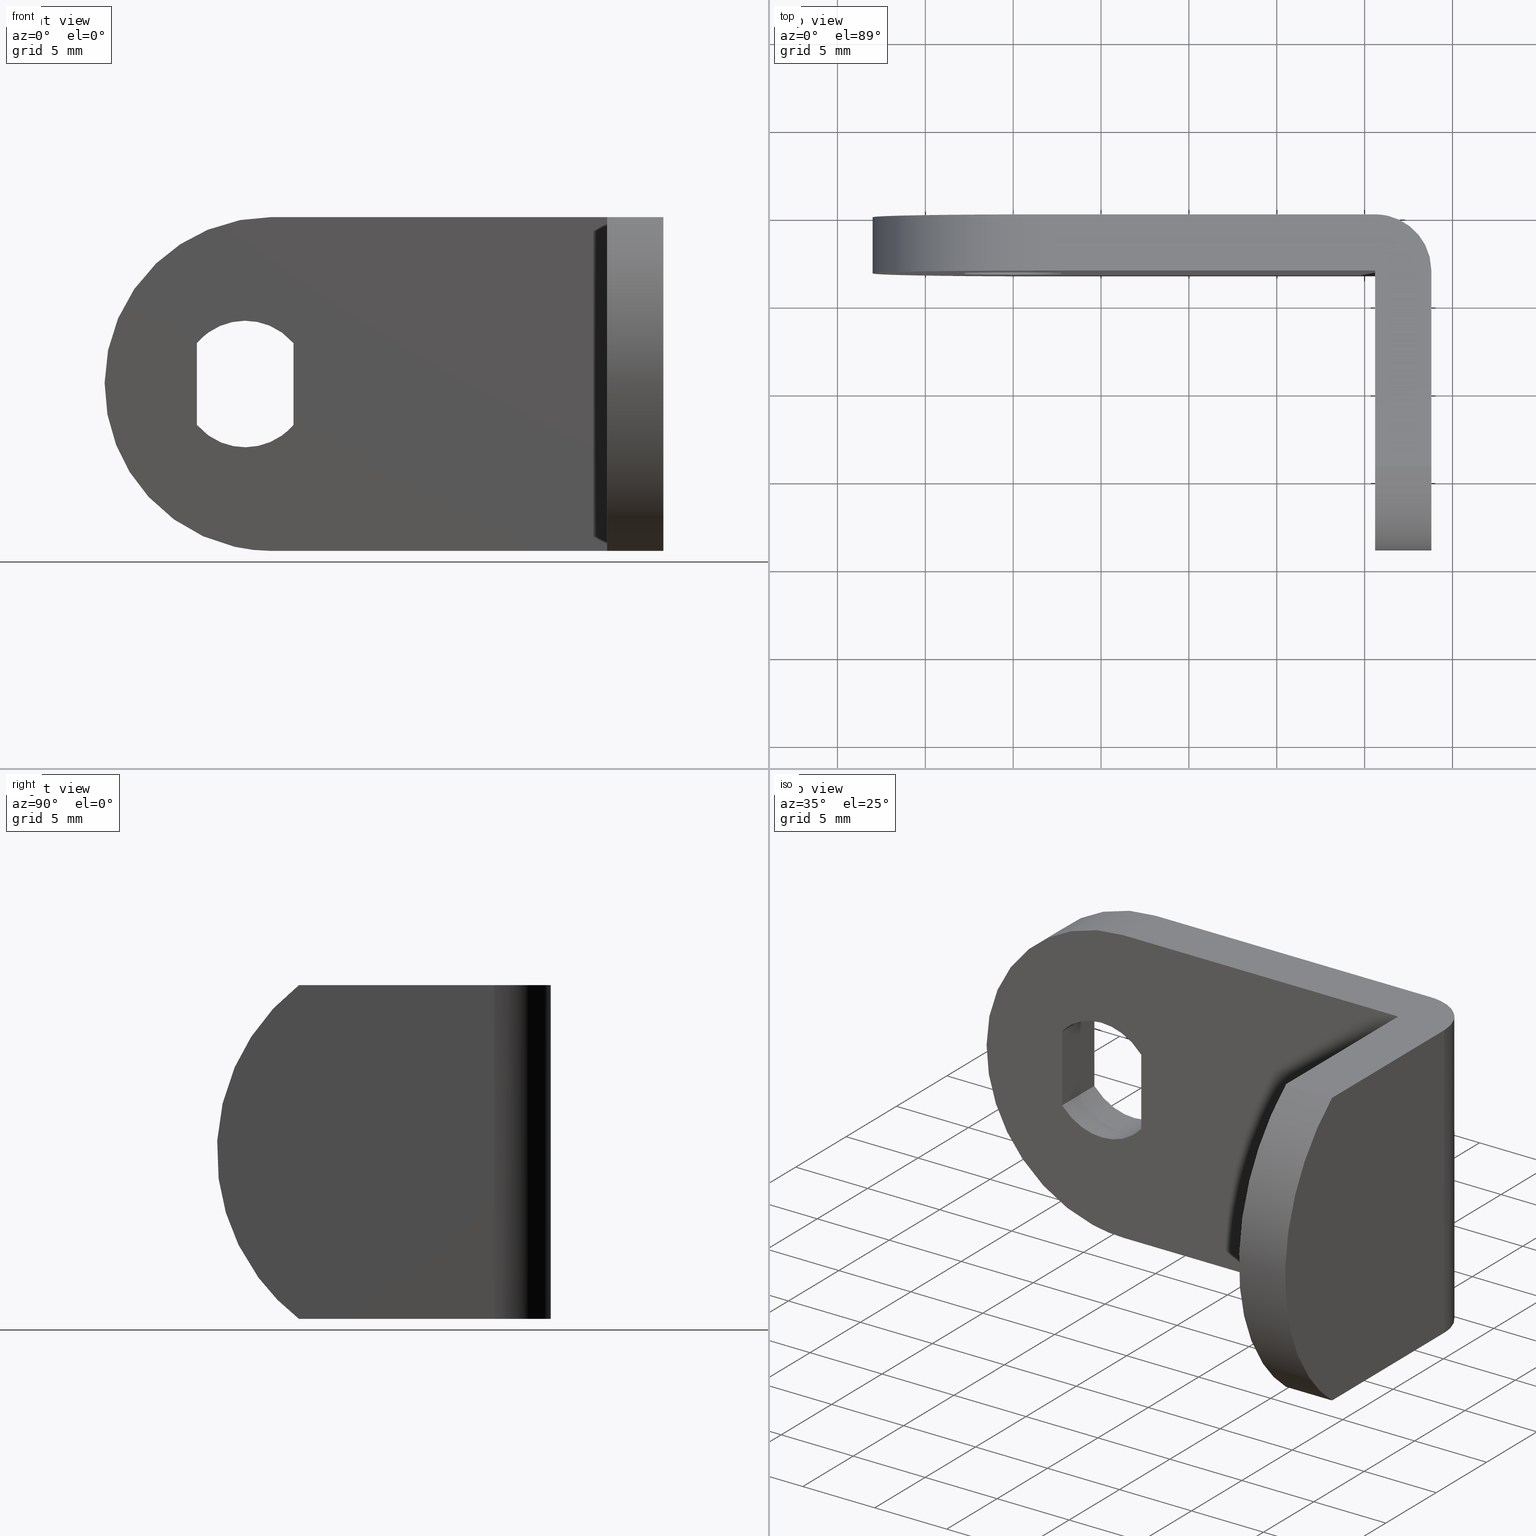
[diagram: canonical four-view strip — front | top / right | iso, engineering-drawing reading convention]
A machine part, canonical four-view strip (front | top / right | iso — engineering-drawing reading convention). The complete STEP part file that produces these views, byte-faithful:
ISO-10303-21;
HEADER;
/****************************************************************
 * Generated by software with PDE/Lib inside                    *
 * PDElib Version 4.4.1-0003, patched  Thursday August 19 11:58 *
 * International Technegroup Inc. (www.iti-oh.com)              *
 ****************************************************************/
FILE_DESCRIPTION((''),'2;1');
FILE_NAME('','2005-07-15T17:37:05',(''),(''),'','CADfix','');
FILE_SCHEMA(('AUTOMOTIVE_DESIGN'));
ENDSEC;
DATA;
#5=APPLICATION_CONTEXT('automotive design');
#6=APPLICATION_PROTOCOL_DEFINITION('Draft International Standard','automotive_design',1998,#5);
#7=PRODUCT_CONTEXT('None',#5,'mechanical');
#8=PRODUCT('cam','','None',(#7));
#9=PRODUCT_RELATED_PRODUCT_CATEGORY('part','description',(#8));
#10=PRODUCT_DEFINITION_FORMATION('None','None',#8);
#11=PRODUCT_DEFINITION_CONTEXT('part definition',#5,'design');
#12=PRODUCT_DEFINITION('None','None',#10,#11);
#18=(NAMED_UNIT(*)PLANE_ANGLE_UNIT()SI_UNIT($,.RADIAN.));
#19=DIMENSIONAL_EXPONENTS(0.0,0.0,0.0,0.0,0.0,0.0,0.0);
#20=PLANE_ANGLE_MEASURE_WITH_UNIT(PLANE_ANGLE_MEASURE(0.017453292500000),#18);
#24=(CONVERSION_BASED_UNIT('DEGREE',#20)NAMED_UNIT(#19)PLANE_ANGLE_UNIT());
#28=(NAMED_UNIT(*)SI_UNIT($,.STERADIAN.)SOLID_ANGLE_UNIT());
#32=(LENGTH_UNIT()NAMED_UNIT(*)SI_UNIT(.MILLI.,.METRE.));
#34=UNCERTAINTY_MEASURE_WITH_UNIT(LENGTH_MEASURE(0.001000000000000),#32,'DISTANCE_ACCURACY_VALUE','');
#36=(GEOMETRIC_REPRESENTATION_CONTEXT(3)GLOBAL_UNCERTAINTY_ASSIGNED_CONTEXT((#34))GLOBAL_UNIT_ASSIGNED_CONTEXT((#24,#28,#32))REPRESENTATION_CONTEXT('None','None'));
#37=AXIS2_PLACEMENT_3D('',#38,#39,#40);
#38=CARTESIAN_POINT('',(0.0,0.0,0.0));
#39=DIRECTION('',(0.0,0.0,1.0));
#40=DIRECTION('',(1.0,0.0,0.0));
#41=ADVANCED_BREP_SHAPE_REPRESENTATION('',(#37,#540),#36);
#42=PRODUCT_DEFINITION_SHAPE('','',#12);
#43=SHAPE_DEFINITION_REPRESENTATION(#42,#41);
#44=CARTESIAN_POINT('',(20.516233765414810,-0.001096560078218,-9.975000000000001));
#45=CARTESIAN_POINT('',(20.516233765414810,-0.001096560078218,9.986874999999996));
#46=CARTESIAN_POINT('',(24.039951671623562,0.091175240645709,-9.975000000000001));
#47=CARTESIAN_POINT('',(24.039951671623562,0.091175240645709,9.986874999999996));
#48=CARTESIAN_POINT('',(23.792078314323856,-3.425024521382329,-9.975000000000003));
#49=CARTESIAN_POINT('',(23.792078314323856,-3.425024521382329,9.986874999999998));
#57=(BOUNDED_SURFACE()B_SPLINE_SURFACE(1,2,((#44,#46,#48),(#45,#47,#49)),.UNSPECIFIED.,.F.,.F.,.U.)B_SPLINE_SURFACE_WITH_KNOTS((2,2),(3,3),(0.0,19.961874999999999),(0.0,5.667655836183720),.UNSPECIFIED.)GEOMETRIC_REPRESENTATION_ITEM()RATIONAL_B_SPLINE_SURFACE(((1.0,0.670944203741254,0.996392687010487),(1.0,0.670944203741254,0.996392687010487)))REPRESENTATION_ITEM('')SURFACE());
#58=CARTESIAN_POINT('',(20.600000000000001,0.0,-9.500000000000000));
#59=VERTEX_POINT('',#58);
#60=CARTESIAN_POINT('',(23.800000000000001,-3.200000000000000,-9.500000000000000));
#61=VERTEX_POINT('',#60);
#62=CARTESIAN_POINT('',(20.600000000000001,0.0,-9.500000000000000));
#63=CARTESIAN_POINT('',(23.799999999999997,-4.336809E-016,-9.500000000000000));
#64=CARTESIAN_POINT('',(23.800000000000001,-3.200000000000000,-9.500000000000000));
#72=(BOUNDED_CURVE()B_SPLINE_CURVE(2,(#62,#63,#64),.UNSPECIFIED.,.F.,.U.)CURVE()GEOMETRIC_REPRESENTATION_ITEM()QUASI_UNIFORM_CURVE()RATIONAL_B_SPLINE_CURVE((1.0,0.707106781186548,1.0))REPRESENTATION_ITEM(''));
#73=EDGE_CURVE('',#59,#61,#72,.T.);
#74=ORIENTED_EDGE('',*,*,#73,.F.);
#75=CARTESIAN_POINT('',(20.600000000000001,0.0,9.500000000000000));
#76=VERTEX_POINT('',#75);
#77=CARTESIAN_POINT('',(20.600000000000001,0.0,9.500000000000000));
#78=CARTESIAN_POINT('',(20.600000000000001,0.0,-9.500000000000000));
#79=QUASI_UNIFORM_CURVE('',1,(#77,#78),.UNSPECIFIED.,.F.,.U.);
#80=EDGE_CURVE('',#76,#59,#79,.T.);
#81=ORIENTED_EDGE('',*,*,#80,.F.);
#82=CARTESIAN_POINT('',(23.800000000000001,-3.200000000000000,9.500000000000000));
#83=VERTEX_POINT('',#82);
#84=CARTESIAN_POINT('',(23.800000000000001,-3.200000000000000,9.500000000000000));
#85=CARTESIAN_POINT('',(23.799999999999997,-4.336809E-016,9.500000000000000));
#86=CARTESIAN_POINT('',(20.600000000000001,0.0,9.500000000000000));
#94=(BOUNDED_CURVE()B_SPLINE_CURVE(2,(#84,#85,#86),.UNSPECIFIED.,.F.,.U.)CURVE()GEOMETRIC_REPRESENTATION_ITEM()QUASI_UNIFORM_CURVE()RATIONAL_B_SPLINE_CURVE((1.0,0.707106781186548,1.0))REPRESENTATION_ITEM(''));
#95=EDGE_CURVE('',#83,#76,#94,.T.);
#96=ORIENTED_EDGE('',*,*,#95,.F.);
#97=CARTESIAN_POINT('',(23.800000000000001,-3.200000000000000,-9.500000000000000));
#98=CARTESIAN_POINT('',(23.800000000000001,-3.200000000000000,9.500000000000000));
#99=QUASI_UNIFORM_CURVE('',1,(#97,#98),.UNSPECIFIED.,.F.,.U.);
#100=EDGE_CURVE('',#61,#83,#99,.T.);
#101=ORIENTED_EDGE('',*,*,#100,.F.);
#102=EDGE_LOOP('',(#74,#81,#96,#101));
#103=FACE_OUTER_BOUND('',#102,.T.);
#104=ADVANCED_FACE('',(#103),#57,.T.);
#105=CARTESIAN_POINT('',(20.600000000000001,-19.789209969376550,-10.449049963174311));
#106=CARTESIAN_POINT('',(20.600000000000001,-2.410789606834190,-10.449049963174311));
#107=CARTESIAN_POINT('',(20.600000000000001,-19.789209969376550,10.449050472794021));
#108=CARTESIAN_POINT('',(20.600000000000001,-2.410789606834190,10.449050472794021));
#109=B_SPLINE_SURFACE_WITH_KNOTS('',1,1,((#105,#107),(#106,#108)),.UNSPECIFIED.,.F.,.F.,.U.,(2,2),(2,2),(0.0,17.378420362542361),(0.0,20.898100435968342),.UNSPECIFIED.);
#110=CARTESIAN_POINT('',(20.600000000000001,-3.199999999999760,-9.500000000000000));
#111=VERTEX_POINT('',#110);
#112=CARTESIAN_POINT('',(20.600000000000001,-3.199999999999760,9.500000000000000));
#113=VERTEX_POINT('',#112);
#114=CARTESIAN_POINT('',(20.600000000000001,-3.199999999999760,-9.500000000000000));
#115=CARTESIAN_POINT('',(20.600000000000001,-3.199999999999760,9.500000000000000));
#116=QUASI_UNIFORM_CURVE('',1,(#114,#115),.UNSPECIFIED.,.F.,.U.);
#117=EDGE_CURVE('',#111,#113,#116,.T.);
#118=ORIENTED_EDGE('',*,*,#117,.F.);
#119=CARTESIAN_POINT('',(20.600000000000001,-14.331439149307560,-9.500000000000000));
#120=VERTEX_POINT('',#119);
#121=CARTESIAN_POINT('',(20.600000000000001,-14.331439149307560,-9.500000000000000));
#122=CARTESIAN_POINT('',(20.600000000000001,-3.199999999999760,-9.500000000000000));
#123=QUASI_UNIFORM_CURVE('',1,(#121,#122),.UNSPECIFIED.,.F.,.U.);
#124=EDGE_CURVE('',#120,#111,#123,.T.);
#125=ORIENTED_EDGE('',*,*,#124,.F.);
#126=CARTESIAN_POINT('',(20.600000000000001,-14.331439149307601,9.500000000000000));
#127=VERTEX_POINT('',#126);
#128=CARTESIAN_POINT('',(20.600000000000001,-14.331439149307601,9.499999999999996));
#129=CARTESIAN_POINT('',(20.600000000000001,-19.0,5.897129495611462));
#130=CARTESIAN_POINT('',(20.600000000000001,-19.0,-4.286122E-016));
#131=CARTESIAN_POINT('',(20.600000000000001,-19.0,-5.897129495611475));
#132=CARTESIAN_POINT('',(20.600000000000001,-14.331439149307579,-9.500000000000011));
#140=(BOUNDED_CURVE()B_SPLINE_CURVE(2,(#128,#129,#130,#131,#132),.UNSPECIFIED.,.F.,.U.)B_SPLINE_CURVE_WITH_KNOTS((3,2,3),(0.0,0.500000000000000,1.0),.UNSPECIFIED.)CURVE()GEOMETRIC_REPRESENTATION_ITEM()RATIONAL_B_SPLINE_CURVE((1.0,0.897483499135862,1.0,0.897483499135862,1.0))REPRESENTATION_ITEM(''));
#141=EDGE_CURVE('',#127,#120,#140,.T.);
#142=ORIENTED_EDGE('',*,*,#141,.F.);
#143=CARTESIAN_POINT('',(20.600000000000001,-3.199999999999760,9.500000000000000));
#144=CARTESIAN_POINT('',(20.600000000000001,-14.331439149307601,9.500000000000000));
#145=QUASI_UNIFORM_CURVE('',1,(#143,#144),.UNSPECIFIED.,.F.,.U.);
#146=EDGE_CURVE('',#113,#127,#145,.T.);
#147=ORIENTED_EDGE('',*,*,#146,.F.);
#148=EDGE_LOOP('',(#118,#125,#142,#147));
#149=FACE_OUTER_BOUND('',#148,.T.);
#150=ADVANCED_FACE('',(#149),#109,.F.);
#151=CARTESIAN_POINT('',(23.800000000000001,-19.789209969376540,-10.449049963174311));
#152=CARTESIAN_POINT('',(23.800000000000001,-2.410789606834443,-10.449049963174311));
#153=CARTESIAN_POINT('',(23.800000000000001,-19.789209969376540,10.449050472794021));
#154=CARTESIAN_POINT('',(23.800000000000001,-2.410789606834443,10.449050472794021));
#155=B_SPLINE_SURFACE_WITH_KNOTS('',1,1,((#151,#153),(#152,#154)),.UNSPECIFIED.,.F.,.F.,.U.,(2,2),(2,2),(0.0,17.378420362542101),(0.0,20.898100435968342),.UNSPECIFIED.);
#156=CARTESIAN_POINT('',(23.800000000000001,-14.331439149307560,-9.500000000000000));
#157=VERTEX_POINT('',#156);
#158=CARTESIAN_POINT('',(23.800000000000001,-14.331439149307560,-9.500000000000000));
#159=CARTESIAN_POINT('',(23.800000000000001,-3.200000000000000,-9.500000000000000));
#160=QUASI_UNIFORM_CURVE('',1,(#158,#159),.UNSPECIFIED.,.F.,.U.);
#161=EDGE_CURVE('',#157,#61,#160,.T.);
#162=ORIENTED_EDGE('',*,*,#161,.T.);
#163=ORIENTED_EDGE('',*,*,#100,.T.);
#164=CARTESIAN_POINT('',(23.800000000000001,-14.331439149307601,9.500000000000000));
#165=VERTEX_POINT('',#164);
#166=CARTESIAN_POINT('',(23.800000000000001,-3.200000000000000,9.500000000000000));
#167=CARTESIAN_POINT('',(23.800000000000001,-14.331439149307601,9.500000000000000));
#168=QUASI_UNIFORM_CURVE('',1,(#166,#167),.UNSPECIFIED.,.F.,.U.);
#169=EDGE_CURVE('',#83,#165,#168,.T.);
#170=ORIENTED_EDGE('',*,*,#169,.T.);
#171=CARTESIAN_POINT('',(23.800000000000001,-14.331439149307601,9.499999999999996));
#172=CARTESIAN_POINT('',(23.800000000000004,-19.0,5.897129495611462));
#173=CARTESIAN_POINT('',(23.800000000000001,-19.0,-4.286122E-016));
#174=CARTESIAN_POINT('',(23.800000000000004,-19.0,-5.897129495611475));
#175=CARTESIAN_POINT('',(23.800000000000001,-14.331439149307579,-9.500000000000011));
#183=(BOUNDED_CURVE()B_SPLINE_CURVE(2,(#171,#172,#173,#174,#175),.UNSPECIFIED.,.F.,.U.)B_SPLINE_CURVE_WITH_KNOTS((3,2,3),(0.0,0.500000000000000,1.0),.UNSPECIFIED.)CURVE()GEOMETRIC_REPRESENTATION_ITEM()RATIONAL_B_SPLINE_CURVE((1.0,0.897483499135862,1.0,0.897483499135862,1.0))REPRESENTATION_ITEM(''));
#184=EDGE_CURVE('',#165,#157,#183,.T.);
#185=ORIENTED_EDGE('',*,*,#184,.T.);
#186=EDGE_LOOP('',(#162,#163,#170,#185));
#187=FACE_OUTER_BOUND('',#186,.T.);
#188=ADVANCED_FACE('',(#187),#155,.T.);
#189=CARTESIAN_POINT('',(23.880000000000010,-13.910077063780680,9.810750989226667));
#190=CARTESIAN_POINT('',(20.518000000000001,-13.910077063780680,9.810750989226667));
#191=CARTESIAN_POINT('',(23.880000000000010,-27.921281533687949,-0.057861795846104));
#192=CARTESIAN_POINT('',(20.517999999999994,-27.921281533687949,-0.057861795846104));
#193=CARTESIAN_POINT('',(23.880000000000010,-13.855704761198680,-9.848822885364408));
#194=CARTESIAN_POINT('',(20.518000000000001,-13.855704761198680,-9.848822885364408));
#202=(BOUNDED_SURFACE()B_SPLINE_SURFACE(1,2,((#189,#191,#193),(#190,#192,#194)),.UNSPECIFIED.,.F.,.F.,.U.)B_SPLINE_SURFACE_WITH_KNOTS((2,2),(3,3),(0.0,3.362000000000010),(0.0,24.987218426483800),.UNSPECIFIED.)GEOMETRIC_REPRESENTATION_ITEM()RATIONAL_B_SPLINE_SURFACE(((1.0,0.573576436351047,1.0),(1.0,0.573576436351047,1.0)))REPRESENTATION_ITEM('')SURFACE());
#203=ORIENTED_EDGE('',*,*,#141,.T.);
#204=CARTESIAN_POINT('',(23.800000000000001,-14.331439149307560,-9.500000000000000));
#205=CARTESIAN_POINT('',(20.600000000000001,-14.331439149307560,-9.500000000000000));
#206=QUASI_UNIFORM_CURVE('',1,(#204,#205),.UNSPECIFIED.,.F.,.U.);
#207=EDGE_CURVE('',#157,#120,#206,.T.);
#208=ORIENTED_EDGE('',*,*,#207,.F.);
#209=ORIENTED_EDGE('',*,*,#184,.F.);
#210=CARTESIAN_POINT('',(23.800000000000001,-14.331439149307601,9.500000000000000));
#211=CARTESIAN_POINT('',(20.600000000000001,-14.331439149307601,9.500000000000000));
#212=QUASI_UNIFORM_CURVE('',1,(#210,#211),.UNSPECIFIED.,.F.,.U.);
#213=EDGE_CURVE('',#165,#127,#212,.T.);
#214=ORIENTED_EDGE('',*,*,#213,.T.);
#215=EDGE_LOOP('',(#203,#208,#209,#214));
#216=FACE_OUTER_BOUND('',#215,.T.);
#217=ADVANCED_FACE('',(#216),#202,.T.);
#218=CARTESIAN_POINT('',(-9.428569944567636,0.0,10.449049963174311));
#219=CARTESIAN_POINT('',(22.028570711679428,0.0,10.449049963174311));
#220=CARTESIAN_POINT('',(-9.428569944567636,0.0,-10.449050472794021));
#221=CARTESIAN_POINT('',(22.028570711679428,0.0,-10.449050472794021));
#222=B_SPLINE_SURFACE_WITH_KNOTS('',1,1,((#218,#220),(#219,#221)),.UNSPECIFIED.,.F.,.F.,.U.,(2,2),(2,2),(0.0,31.457140656247059),(0.0,20.898100435968342),.UNSPECIFIED.);
#223=CARTESIAN_POINT('',(1.500000000000000,0.0,9.500000000000000));
#224=VERTEX_POINT('',#223);
#225=CARTESIAN_POINT('',(20.600000000000001,0.0,9.500000000000000));
#226=CARTESIAN_POINT('',(1.500000000000000,0.0,9.500000000000000));
#227=QUASI_UNIFORM_CURVE('',1,(#225,#226),.UNSPECIFIED.,.F.,.U.);
#228=EDGE_CURVE('',#76,#224,#227,.T.);
#229=ORIENTED_EDGE('',*,*,#228,.F.);
#230=ORIENTED_EDGE('',*,*,#80,.T.);
#231=CARTESIAN_POINT('',(1.500000000000000,0.0,-9.500000000000000));
#232=VERTEX_POINT('',#231);
#233=CARTESIAN_POINT('',(1.500000000000000,0.0,-9.500000000000000));
#234=CARTESIAN_POINT('',(20.600000000000001,0.0,-9.500000000000000));
#235=QUASI_UNIFORM_CURVE('',1,(#233,#234),.UNSPECIFIED.,.F.,.U.);
#236=EDGE_CURVE('',#232,#59,#235,.T.);
#237=ORIENTED_EDGE('',*,*,#236,.F.);
#238=CARTESIAN_POINT('',(1.500000000000000,0.0,9.500000000000000));
#239=CARTESIAN_POINT('',(-8.0,0.0,9.500000000000000));
#240=CARTESIAN_POINT('',(-8.0,0.0,0.0));
#241=CARTESIAN_POINT('',(-8.0,0.0,-9.500000000000000));
#242=CARTESIAN_POINT('',(1.500000000000000,0.0,-9.500000000000000));
#250=(BOUNDED_CURVE()B_SPLINE_CURVE(2,(#238,#239,#240,#241,#242),.UNSPECIFIED.,.F.,.U.)B_SPLINE_CURVE_WITH_KNOTS((3,2,3),(0.0,0.500000000000000,1.0),.UNSPECIFIED.)CURVE()GEOMETRIC_REPRESENTATION_ITEM()RATIONAL_B_SPLINE_CURVE((1.0,0.707106781186548,1.0,0.707106781186548,1.0))REPRESENTATION_ITEM(''));
#251=EDGE_CURVE('',#224,#232,#250,.T.);
#252=ORIENTED_EDGE('',*,*,#251,.F.);
#253=EDGE_LOOP('',(#229,#230,#237,#252));
#254=FACE_OUTER_BOUND('',#253,.T.);
#255=CARTESIAN_POINT('',(-2.750000000000000,0.0,-2.323252031097790));
#256=VERTEX_POINT('',#255);
#257=CARTESIAN_POINT('',(2.750000000000000,0.0,-2.323252031097790));
#258=VERTEX_POINT('',#257);
#259=CARTESIAN_POINT('',(-2.749999999999999,0.0,-2.323252031097790));
#260=CARTESIAN_POINT('',(-1.671379159290166,0.0,-3.600000000000001));
#261=CARTESIAN_POINT('',(0.0,0.0,-3.600000000000000));
#262=CARTESIAN_POINT('',(1.671379159290166,0.0,-3.600000000000001));
#263=CARTESIAN_POINT('',(2.749999999999998,0.0,-2.323252031097791));
#271=(BOUNDED_CURVE()B_SPLINE_CURVE(2,(#259,#260,#261,#262,#263),.UNSPECIFIED.,.F.,.U.)B_SPLINE_CURVE_WITH_KNOTS((3,2,3),(0.0,0.500000000000000,1.0),.UNSPECIFIED.)CURVE()GEOMETRIC_REPRESENTATION_ITEM()RATIONAL_B_SPLINE_CURVE((1.0,0.907013722723105,1.0,0.907013722723105,1.0))REPRESENTATION_ITEM(''));
#272=EDGE_CURVE('',#256,#258,#271,.T.);
#273=ORIENTED_EDGE('',*,*,#272,.T.);
#274=CARTESIAN_POINT('',(2.750000000000000,0.0,2.323252031097790));
#275=VERTEX_POINT('',#274);
#276=CARTESIAN_POINT('',(2.750000000000000,0.0,2.323252031097790));
#277=CARTESIAN_POINT('',(2.750000000000000,0.0,-2.323252031097790));
#278=QUASI_UNIFORM_CURVE('',1,(#276,#277),.UNSPECIFIED.,.F.,.U.);
#279=EDGE_CURVE('',#275,#258,#278,.T.);
#280=ORIENTED_EDGE('',*,*,#279,.F.);
#281=CARTESIAN_POINT('',(-2.750000000000000,0.0,2.323252031097790));
#282=VERTEX_POINT('',#281);
#283=CARTESIAN_POINT('',(2.749999999999999,0.0,2.323252031097790));
#284=CARTESIAN_POINT('',(1.671379159290166,0.0,3.600000000000001));
#285=CARTESIAN_POINT('',(0.0,0.0,3.600000000000000));
#286=CARTESIAN_POINT('',(-1.671379159290165,0.0,3.600000000000001));
#287=CARTESIAN_POINT('',(-2.749999999999998,0.0,2.323252031097791));
#295=(BOUNDED_CURVE()B_SPLINE_CURVE(2,(#283,#284,#285,#286,#287),.UNSPECIFIED.,.F.,.U.)B_SPLINE_CURVE_WITH_KNOTS((3,2,3),(0.0,0.500000000000000,1.0),.UNSPECIFIED.)CURVE()GEOMETRIC_REPRESENTATION_ITEM()RATIONAL_B_SPLINE_CURVE((1.0,0.907013722723105,1.0,0.907013722723105,1.0))REPRESENTATION_ITEM(''));
#296=EDGE_CURVE('',#275,#282,#295,.T.);
#297=ORIENTED_EDGE('',*,*,#296,.T.);
#298=CARTESIAN_POINT('',(-2.750000000000000,0.0,-2.323252031097790));
#299=CARTESIAN_POINT('',(-2.750000000000000,0.0,2.323252031097790));
#300=QUASI_UNIFORM_CURVE('',1,(#298,#299),.UNSPECIFIED.,.F.,.U.);
#301=EDGE_CURVE('',#256,#282,#300,.T.);
#302=ORIENTED_EDGE('',*,*,#301,.F.);
#303=EDGE_LOOP('',(#273,#280,#297,#302));
#304=FACE_BOUND('',#303,.T.);
#305=ADVANCED_FACE('',(#254,#304),#222,.T.);
#306=CARTESIAN_POINT('',(-9.428569944567636,-3.199999999999800,10.449049963174311));
#307=CARTESIAN_POINT('',(22.028570711679428,-3.199999999999800,10.449049963174311));
#308=CARTESIAN_POINT('',(-9.428569944567636,-3.199999999999800,-10.449050472794021));
#309=CARTESIAN_POINT('',(22.028570711679428,-3.199999999999800,-10.449050472794021));
#310=B_SPLINE_SURFACE_WITH_KNOTS('',1,1,((#306,#308),(#307,#309)),.UNSPECIFIED.,.F.,.F.,.U.,(2,2),(2,2),(0.0,31.457140656247059),(0.0,20.898100435968342),.UNSPECIFIED.);
#311=CARTESIAN_POINT('',(1.500000000000000,-3.199999999999760,9.500000000000000));
#312=VERTEX_POINT('',#311);
#313=CARTESIAN_POINT('',(20.600000000000001,-3.199999999999760,9.500000000000000));
#314=CARTESIAN_POINT('',(1.500000000000000,-3.199999999999760,9.500000000000000));
#315=QUASI_UNIFORM_CURVE('',1,(#313,#314),.UNSPECIFIED.,.F.,.U.);
#316=EDGE_CURVE('',#113,#312,#315,.T.);
#317=ORIENTED_EDGE('',*,*,#316,.T.);
#318=CARTESIAN_POINT('',(1.500000000000000,-3.199999999999760,-9.500000000000000));
#319=VERTEX_POINT('',#318);
#320=CARTESIAN_POINT('',(1.500000000000000,-3.199999999999760,9.500000000000000));
#321=CARTESIAN_POINT('',(-8.0,-3.199999999999759,9.500000000000000));
#322=CARTESIAN_POINT('',(-8.0,-3.199999999999760,0.0));
#323=CARTESIAN_POINT('',(-8.0,-3.199999999999759,-9.500000000000000));
#324=CARTESIAN_POINT('',(1.500000000000000,-3.199999999999760,-9.500000000000000));
#332=(BOUNDED_CURVE()B_SPLINE_CURVE(2,(#320,#321,#322,#323,#324),.UNSPECIFIED.,.F.,.U.)B_SPLINE_CURVE_WITH_KNOTS((3,2,3),(0.0,0.500000000000000,1.0),.UNSPECIFIED.)CURVE()GEOMETRIC_REPRESENTATION_ITEM()RATIONAL_B_SPLINE_CURVE((1.0,0.707106781186548,1.0,0.707106781186548,1.0))REPRESENTATION_ITEM(''));
#333=EDGE_CURVE('',#312,#319,#332,.T.);
#334=ORIENTED_EDGE('',*,*,#333,.T.);
#335=CARTESIAN_POINT('',(1.500000000000000,-3.199999999999760,-9.500000000000000));
#336=CARTESIAN_POINT('',(20.600000000000001,-3.199999999999760,-9.500000000000000));
#337=QUASI_UNIFORM_CURVE('',1,(#335,#336),.UNSPECIFIED.,.F.,.U.);
#338=EDGE_CURVE('',#319,#111,#337,.T.);
#339=ORIENTED_EDGE('',*,*,#338,.T.);
#340=ORIENTED_EDGE('',*,*,#117,.T.);
#341=EDGE_LOOP('',(#317,#334,#339,#340));
#342=FACE_OUTER_BOUND('',#341,.T.);
#343=CARTESIAN_POINT('',(-2.750000000000000,-3.199999999999760,-2.323252031097790));
#344=VERTEX_POINT('',#343);
#345=CARTESIAN_POINT('',(2.750000000000000,-3.199999999999760,-2.323252031097790));
#346=VERTEX_POINT('',#345);
#347=CARTESIAN_POINT('',(-2.749999999999999,-3.199999999999760,-2.323252031097790));
#348=CARTESIAN_POINT('',(-1.671379159290166,-3.199999999999760,-3.600000000000001));
#349=CARTESIAN_POINT('',(0.0,-3.199999999999760,-3.600000000000000));
#350=CARTESIAN_POINT('',(1.671379159290166,-3.199999999999760,-3.600000000000001));
#351=CARTESIAN_POINT('',(2.749999999999998,-3.199999999999760,-2.323252031097791));
#359=(BOUNDED_CURVE()B_SPLINE_CURVE(2,(#347,#348,#349,#350,#351),.UNSPECIFIED.,.F.,.U.)B_SPLINE_CURVE_WITH_KNOTS((3,2,3),(0.0,0.500000000000000,1.0),.UNSPECIFIED.)CURVE()GEOMETRIC_REPRESENTATION_ITEM()RATIONAL_B_SPLINE_CURVE((1.0,0.907013722723105,1.0,0.907013722723105,1.0))REPRESENTATION_ITEM(''));
#360=EDGE_CURVE('',#344,#346,#359,.T.);
#361=ORIENTED_EDGE('',*,*,#360,.F.);
#362=CARTESIAN_POINT('',(-2.750000000000000,-3.199999999999760,2.323252031097790));
#363=VERTEX_POINT('',#362);
#364=CARTESIAN_POINT('',(-2.750000000000000,-3.199999999999760,-2.323252031097790));
#365=CARTESIAN_POINT('',(-2.750000000000000,-3.199999999999760,2.323252031097790));
#366=QUASI_UNIFORM_CURVE('',1,(#364,#365),.UNSPECIFIED.,.F.,.U.);
#367=EDGE_CURVE('',#344,#363,#366,.T.);
#368=ORIENTED_EDGE('',*,*,#367,.T.);
#369=CARTESIAN_POINT('',(2.750000000000000,-3.199999999999760,2.323252031097790));
#370=VERTEX_POINT('',#369);
#371=CARTESIAN_POINT('',(2.749999999999999,-3.199999999999760,2.323252031097790));
#372=CARTESIAN_POINT('',(1.671379159290166,-3.199999999999760,3.600000000000001));
#373=CARTESIAN_POINT('',(0.0,-3.199999999999760,3.600000000000000));
#374=CARTESIAN_POINT('',(-1.671379159290165,-3.199999999999760,3.600000000000001));
#375=CARTESIAN_POINT('',(-2.749999999999998,-3.199999999999760,2.323252031097791));
#383=(BOUNDED_CURVE()B_SPLINE_CURVE(2,(#371,#372,#373,#374,#375),.UNSPECIFIED.,.F.,.U.)B_SPLINE_CURVE_WITH_KNOTS((3,2,3),(0.0,0.500000000000000,1.0),.UNSPECIFIED.)CURVE()GEOMETRIC_REPRESENTATION_ITEM()RATIONAL_B_SPLINE_CURVE((1.0,0.907013722723105,1.0,0.907013722723105,1.0))REPRESENTATION_ITEM(''));
#384=EDGE_CURVE('',#370,#363,#383,.T.);
#385=ORIENTED_EDGE('',*,*,#384,.F.);
#386=CARTESIAN_POINT('',(2.750000000000000,-3.199999999999760,2.323252031097790));
#387=CARTESIAN_POINT('',(2.750000000000000,-3.199999999999760,-2.323252031097790));
#388=QUASI_UNIFORM_CURVE('',1,(#386,#387),.UNSPECIFIED.,.F.,.U.);
#389=EDGE_CURVE('',#370,#346,#388,.T.);
#390=ORIENTED_EDGE('',*,*,#389,.T.);
#391=EDGE_LOOP('',(#361,#368,#385,#390));
#392=FACE_BOUND('',#391,.T.);
#393=ADVANCED_FACE('',(#342,#392),#310,.F.);
#394=CARTESIAN_POINT('',(2.750000000000000,-3.359840053876149,2.555344839780001));
#395=CARTESIAN_POINT('',(2.750000000000000,-3.359840053876149,-2.555344673608066));
#396=CARTESIAN_POINT('',(2.750000000000000,0.159840082486617,2.555344839780001));
#397=CARTESIAN_POINT('',(2.750000000000000,0.159840082486617,-2.555344673608066));
#398=B_SPLINE_SURFACE_WITH_KNOTS('',1,1,((#394,#396),(#395,#397)),.UNSPECIFIED.,.F.,.F.,.U.,(2,2),(2,2),(0.0,5.110689513388067),(0.0,3.519680136362766),.UNSPECIFIED.);
#399=ORIENTED_EDGE('',*,*,#279,.T.);
#400=CARTESIAN_POINT('',(2.750000000000000,-3.199999999999760,-2.323252031097790));
#401=CARTESIAN_POINT('',(2.750000000000000,0.0,-2.323252031097790));
#402=QUASI_UNIFORM_CURVE('',1,(#400,#401),.UNSPECIFIED.,.F.,.U.);
#403=EDGE_CURVE('',#346,#258,#402,.T.);
#404=ORIENTED_EDGE('',*,*,#403,.F.);
#405=ORIENTED_EDGE('',*,*,#389,.F.);
#406=CARTESIAN_POINT('',(2.750000000000000,-3.199999999999760,2.323252031097790));
#407=CARTESIAN_POINT('',(2.750000000000000,0.0,2.323252031097790));
#408=QUASI_UNIFORM_CURVE('',1,(#406,#407),.UNSPECIFIED.,.F.,.U.);
#409=EDGE_CURVE('',#370,#275,#408,.T.);
#410=ORIENTED_EDGE('',*,*,#409,.T.);
#411=EDGE_LOOP('',(#399,#404,#405,#410));
#412=FACE_OUTER_BOUND('',#411,.T.);
#413=ADVANCED_FACE('',(#412),#398,.F.);
#414=CARTESIAN_POINT('',(0.386115122892990,-15.047294372505069,-9.500000000000000));
#415=CARTESIAN_POINT('',(24.913883880219331,-15.047294372505069,-9.500000000000000));
#416=CARTESIAN_POINT('',(0.386115122892990,0.715855735729708,-9.500000000000000));
#417=CARTESIAN_POINT('',(24.913883880219331,0.715855735729708,-9.500000000000000));
#418=B_SPLINE_SURFACE_WITH_KNOTS('',1,1,((#414,#416),(#415,#417)),.UNSPECIFIED.,.F.,.F.,.U.,(2,2),(2,2),(0.0,24.527768757326339),(0.0,15.763150108234781),.UNSPECIFIED.);
#419=ORIENTED_EDGE('',*,*,#236,.T.);
#420=ORIENTED_EDGE('',*,*,#73,.T.);
#421=ORIENTED_EDGE('',*,*,#161,.F.);
#422=ORIENTED_EDGE('',*,*,#207,.T.);
#423=ORIENTED_EDGE('',*,*,#124,.T.);
#424=ORIENTED_EDGE('',*,*,#338,.F.);
#425=CARTESIAN_POINT('',(1.500000000000000,-3.199999999999760,-9.500000000000000));
#426=CARTESIAN_POINT('',(1.500000000000000,0.0,-9.500000000000000));
#427=QUASI_UNIFORM_CURVE('',1,(#425,#426),.UNSPECIFIED.,.F.,.U.);
#428=EDGE_CURVE('',#319,#232,#427,.T.);
#429=ORIENTED_EDGE('',*,*,#428,.T.);
#430=EDGE_LOOP('',(#419,#420,#421,#422,#423,#424,#429));
#431=FACE_OUTER_BOUND('',#430,.T.);
#432=ADVANCED_FACE('',(#431),#418,.F.);
#433=CARTESIAN_POINT('',(1.748681008924809,-3.279999999999754,9.496744587267790));
#434=CARTESIAN_POINT('',(1.748681008924809,0.081999999999994,9.496744587267790));
#435=CARTESIAN_POINT('',(-8.171747809252530,-3.279999999999755,9.756520158233297));
#436=CARTESIAN_POINT('',(-8.171747809252530,0.081999999999994,9.756520158233297));
#437=CARTESIAN_POINT('',(-7.998553103985711,-3.279999999999754,-0.165797861154178));
#438=CARTESIAN_POINT('',(-7.998553103985711,0.081999999999994,-0.165797861154178));
#439=CARTESIAN_POINT('',(-7.825358398718894,-3.279999999999755,-10.088115880541652));
#440=CARTESIAN_POINT('',(-7.825358398718894,0.081999999999994,-10.088115880541652));
#441=CARTESIAN_POINT('',(2.079961125581123,-3.279999999999754,-9.482280585007731));
#442=CARTESIAN_POINT('',(2.079961125581123,0.081999999999994,-9.482280585007731));
#450=(BOUNDED_SURFACE()B_SPLINE_SURFACE(1,2,((#433,#435,#437,#439,#441),(#434,#436,#438,#440,#442)),.UNSPECIFIED.,.F.,.F.,.U.)B_SPLINE_SURFACE_WITH_KNOTS((2,2),(3,2,3),(0.0,3.361999999999748),(0.0,16.227974395134680,32.455948790269368),.UNSPECIFIED.)GEOMETRIC_REPRESENTATION_ITEM()RATIONAL_B_SPLINE_SURFACE(((1.0,0.691513055782269,1.0,0.691513055782269,1.0),(1.0,0.691513055782269,1.0,0.691513055782269,1.0)))REPRESENTATION_ITEM('')SURFACE());
#451=ORIENTED_EDGE('',*,*,#251,.T.);
#452=ORIENTED_EDGE('',*,*,#428,.F.);
#453=ORIENTED_EDGE('',*,*,#333,.F.);
#454=CARTESIAN_POINT('',(1.500000000000000,-3.199999999999760,9.500000000000000));
#455=CARTESIAN_POINT('',(1.500000000000000,0.0,9.500000000000000));
#456=QUASI_UNIFORM_CURVE('',1,(#454,#455),.UNSPECIFIED.,.F.,.U.);
#457=EDGE_CURVE('',#312,#224,#456,.T.);
#458=ORIENTED_EDGE('',*,*,#457,.T.);
#459=EDGE_LOOP('',(#451,#452,#453,#458));
#460=FACE_OUTER_BOUND('',#459,.T.);
#461=ADVANCED_FACE('',(#460),#450,.T.);
#462=CARTESIAN_POINT('',(24.913884328768940,-15.047294372505110,9.500000000000000));
#463=CARTESIAN_POINT('',(0.386114474965839,-15.047294372505110,9.500000000000000));
#464=CARTESIAN_POINT('',(24.913884328768940,0.715855735729711,9.500000000000000));
#465=CARTESIAN_POINT('',(0.386114474965839,0.715855735729711,9.500000000000000));
#466=B_SPLINE_SURFACE_WITH_KNOTS('',1,1,((#462,#464),(#463,#465)),.UNSPECIFIED.,.F.,.F.,.U.,(2,2),(2,2),(0.0,24.527769853803100),(0.0,15.763150108234820),.UNSPECIFIED.);
#467=ORIENTED_EDGE('',*,*,#169,.F.);
#468=ORIENTED_EDGE('',*,*,#95,.T.);
#469=ORIENTED_EDGE('',*,*,#228,.T.);
#470=ORIENTED_EDGE('',*,*,#457,.F.);
#471=ORIENTED_EDGE('',*,*,#316,.F.);
#472=ORIENTED_EDGE('',*,*,#146,.T.);
#473=ORIENTED_EDGE('',*,*,#213,.F.);
#474=EDGE_LOOP('',(#467,#468,#469,#470,#471,#472,#473));
#475=FACE_OUTER_BOUND('',#474,.T.);
#476=ADVANCED_FACE('',(#475),#466,.F.);
#477=CARTESIAN_POINT('',(2.824873879980537,-3.279999999999755,2.231610979136753));
#478=CARTESIAN_POINT('',(2.824873879980537,0.081999999999994,2.231610979136753));
#479=CARTESIAN_POINT('',(-0.128064459999346,-3.279999999999755,5.969573582739396));
#480=CARTESIAN_POINT('',(-0.128064459999346,0.081999999999994,5.969573582739396));
#481=CARTESIAN_POINT('',(-2.917979773599893,-3.279999999999755,2.108410311315593));
#482=CARTESIAN_POINT('',(-2.917979773599893,0.081999999999994,2.108410311315593));
#490=(BOUNDED_SURFACE()B_SPLINE_SURFACE(1,2,((#477,#479,#481),(#478,#480,#482)),.UNSPECIFIED.,.F.,.F.,.U.)B_SPLINE_SURFACE_WITH_KNOTS((2,2),(3,3),(0.0,3.361999999999749),(0.0,7.167140233186153),.UNSPECIFIED.)GEOMETRIC_REPRESENTATION_ITEM()RATIONAL_B_SPLINE_SURFACE(((1.0,0.602504377753214,0.998623677677103),(1.0,0.602504377753214,0.998623677677103)))REPRESENTATION_ITEM('')SURFACE());
#491=ORIENTED_EDGE('',*,*,#296,.F.);
#492=ORIENTED_EDGE('',*,*,#409,.F.);
#493=ORIENTED_EDGE('',*,*,#384,.T.);
#494=CARTESIAN_POINT('',(-2.750000000000000,-3.199999999999760,2.323252031097790));
#495=CARTESIAN_POINT('',(-2.750000000000000,0.0,2.323252031097790));
#496=QUASI_UNIFORM_CURVE('',1,(#494,#495),.UNSPECIFIED.,.F.,.U.);
#497=EDGE_CURVE('',#363,#282,#496,.T.);
#498=ORIENTED_EDGE('',*,*,#497,.T.);
#499=EDGE_LOOP('',(#491,#492,#493,#498));
#500=FACE_OUTER_BOUND('',#499,.T.);
#501=ADVANCED_FACE('',(#500),#490,.F.);
#502=CARTESIAN_POINT('',(-2.750000000000000,-3.359840053876149,-2.555344839780001));
#503=CARTESIAN_POINT('',(-2.750000000000000,-3.359840053876149,2.555344673608066));
#504=CARTESIAN_POINT('',(-2.750000000000000,0.159840082486617,-2.555344839780001));
#505=CARTESIAN_POINT('',(-2.750000000000000,0.159840082486617,2.555344673608066));
#506=B_SPLINE_SURFACE_WITH_KNOTS('',1,1,((#502,#504),(#503,#505)),.UNSPECIFIED.,.F.,.F.,.U.,(2,2),(2,2),(0.0,5.110689513388067),(0.0,3.519680136362766),.UNSPECIFIED.);
#507=ORIENTED_EDGE('',*,*,#301,.T.);
#508=ORIENTED_EDGE('',*,*,#497,.F.);
#509=ORIENTED_EDGE('',*,*,#367,.F.);
#510=CARTESIAN_POINT('',(-2.750000000000000,-3.199999999999760,-2.323252031097790));
#511=CARTESIAN_POINT('',(-2.750000000000000,0.0,-2.323252031097790));
#512=QUASI_UNIFORM_CURVE('',1,(#510,#511),.UNSPECIFIED.,.F.,.U.);
#513=EDGE_CURVE('',#344,#256,#512,.T.);
#514=ORIENTED_EDGE('',*,*,#513,.T.);
#515=EDGE_LOOP('',(#507,#508,#509,#514));
#516=FACE_OUTER_BOUND('',#515,.T.);
#517=ADVANCED_FACE('',(#516),#506,.F.);
#518=CARTESIAN_POINT('',(-2.809873292006992,-3.279999999999755,-2.250469302804591));
#519=CARTESIAN_POINT('',(-2.809873292006992,0.081999999999994,-2.250469302804591));
#520=CARTESIAN_POINT('',(0.070596060625135,-3.279999999999756,-5.846943110431760));
#521=CARTESIAN_POINT('',(0.070596060625135,0.081999999999994,-5.846943110431760));
#522=CARTESIAN_POINT('',(2.863390619823826,-3.279999999999755,-2.181970246888101));
#523=CARTESIAN_POINT('',(2.863390619823826,0.081999999999994,-2.181970246888101));
#531=(BOUNDED_SURFACE()B_SPLINE_SURFACE(1,2,((#518,#520,#522),(#519,#521,#523)),.UNSPECIFIED.,.F.,.F.,.U.)B_SPLINE_SURFACE_WITH_KNOTS((2,2),(3,3),(0.0,3.361999999999750),(0.0,7.023349275348402),.UNSPECIFIED.)GEOMETRIC_REPRESENTATION_ITEM()RATIONAL_B_SPLINE_SURFACE(((1.0,0.615661475325658,1.0),(1.0,0.615661475325658,1.0)))REPRESENTATION_ITEM('')SURFACE());
#532=ORIENTED_EDGE('',*,*,#272,.F.);
#533=ORIENTED_EDGE('',*,*,#513,.F.);
#534=ORIENTED_EDGE('',*,*,#360,.T.);
#535=ORIENTED_EDGE('',*,*,#403,.T.);
#536=EDGE_LOOP('',(#532,#533,#534,#535));
#537=FACE_OUTER_BOUND('',#536,.T.);
#538=ADVANCED_FACE('',(#537),#531,.F.);
#539=CLOSED_SHELL('',(#104,#150,#188,#217,#305,#393,#413,#432,#461,#476,#501,#517,#538));
#540=MANIFOLD_SOLID_BREP('cam',#539);
#546=(NAMED_UNIT(*)PLANE_ANGLE_UNIT()SI_UNIT($,.RADIAN.));
#547=DIMENSIONAL_EXPONENTS(0.0,0.0,0.0,0.0,0.0,0.0,0.0);
#548=PLANE_ANGLE_MEASURE_WITH_UNIT(PLANE_ANGLE_MEASURE(0.017453292500000),#546);
#552=(CONVERSION_BASED_UNIT('DEGREE',#548)NAMED_UNIT(#547)PLANE_ANGLE_UNIT());
#556=(NAMED_UNIT(*)SI_UNIT($,.STERADIAN.)SOLID_ANGLE_UNIT());
#560=(LENGTH_UNIT()NAMED_UNIT(*)SI_UNIT(.MILLI.,.METRE.));
#562=UNCERTAINTY_MEASURE_WITH_UNIT(LENGTH_MEASURE(0.001000000000000),#560,'DISTANCE_ACCURACY_VALUE','');
#564=(GEOMETRIC_REPRESENTATION_CONTEXT(3)GLOBAL_UNCERTAINTY_ASSIGNED_CONTEXT((#562))GLOBAL_UNIT_ASSIGNED_CONTEXT((#552,#556,#560))REPRESENTATION_CONTEXT('','3D'));
ENDSEC;
END-ISO-10303-21;
